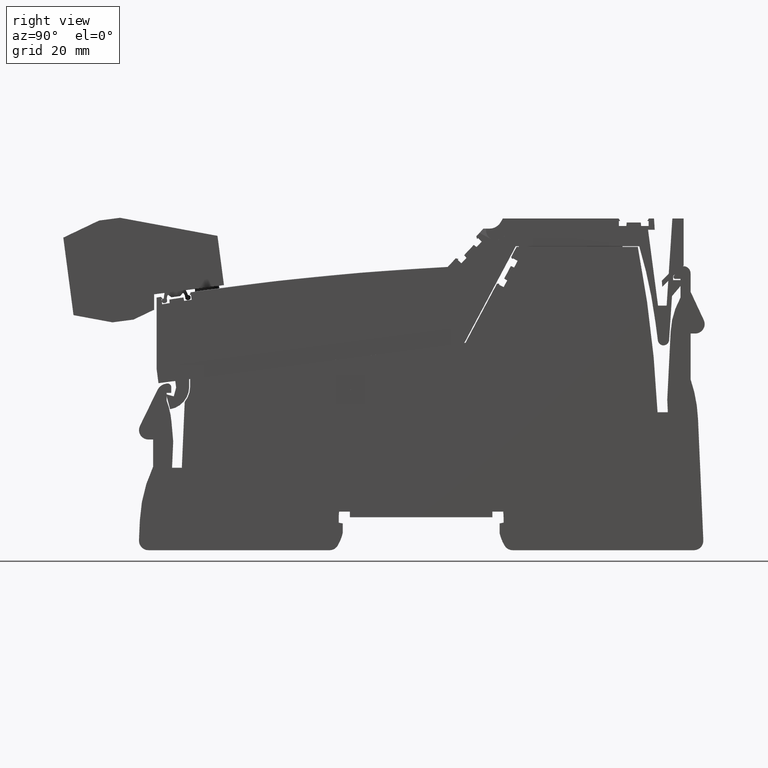
[diagram: clean part render]
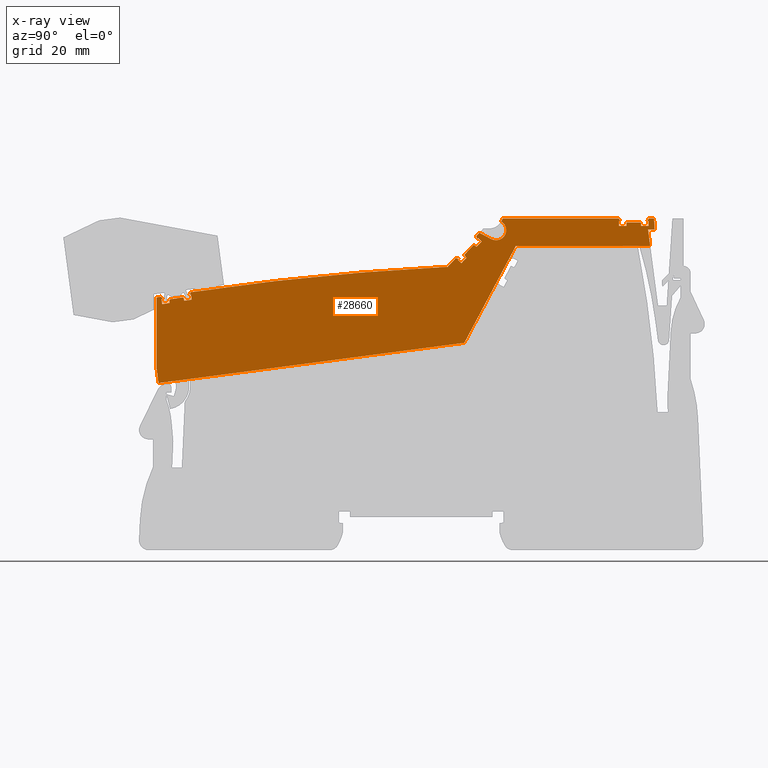
[diagram: x-ray — body ghosted, one internal face saturated and labeled with its STEP entity id]
A machine part, right view, then the same camera in x-ray: the body is ghosted and one INTERNAL B-rep face — a face not visible from any outside direction — is saturated and labeled: STEP entity #28660.
In plain terms, the highlighted planar face has unit normal (1, 0, 0).
Its self-contained STEP definition (entity closure, byte-faithful):
#24560=CARTESIAN_POINT('',(82.6815349965882,79.1094320933787,-35.425));
#24570=DIRECTION('',(0.,-0.,1.));
#24580=DIRECTION('',(0.99144486137381,0.130526192220052,0.));
#24590=AXIS2_PLACEMENT_3D('',#24560,#24570,#24580);
#24600=PLANE('',#24590);
#24610=CARTESIAN_POINT('',(7.105427357601E-15,123.952271663143,-35.425))
;
#24620=DIRECTION('',(0.887010833178214,-0.461748613235049,0.));
#24630=VECTOR('',#24620,1.);
#24640=LINE('',#24610,#24630);
#24650=CARTESIAN_POINT('',(81.7124060542132,81.4154854500132,-35.425));
#24660=VERTEX_POINT('',#24650);
#24670=CARTESIAN_POINT('',(84.2556033003072,80.0915807606426,-35.425));
#24680=VERTEX_POINT('',#24670);
#24690=EDGE_CURVE('',#24660,#24680,#24640,.T.);
#24700=ORIENTED_EDGE('',*,*,#24690,.F.);
#24710=CARTESIAN_POINT('',(85.2483628187626,81.9986540519759,-35.425));
#24720=DIRECTION('',(-8.85927774418128E-33,0.,1.));
#24730=DIRECTION('',(0.99144486137381,0.130526192220052,
8.7834853949519E-33));
#24740=AXIS2_PLACEMENT_3D('',#24710,#24720,#24730);
#24750=CIRCLE('',#24740,2.15000000000011);
#24760=CARTESIAN_POINT('',(86.323362818763,83.8606086701124,-35.425));
#24770=VERTEX_POINT('',#24760);
#24780=EDGE_CURVE('',#24680,#24770,#24750,.T.);
#24790=ORIENTED_EDGE('',*,*,#24780,.F.);
#24800=CARTESIAN_POINT('',(37.9064178286642,-2.8421709430404E-14,-35.425
));
#24810=DIRECTION('',(-0.500000000000028,-0.866025403784423,0.));
#24820=VECTOR('',#24810,1.);
#24830=LINE('',#24800,#24820);
#24840=CARTESIAN_POINT('',(86.6847904689085,84.4866197234245,-35.425));
#24850=VERTEX_POINT('',#24840);
#24860=EDGE_CURVE('',#24850,#24770,#24830,.T.);
#24870=ORIENTED_EDGE('',*,*,#24860,.T.);
#24880=CARTESIAN_POINT('',(7.105427357601E-15,84.4866197234245,-35.425))
;
#24890=DIRECTION('',(-1.,0.,0.));
#24900=VECTOR('',#24890,1.);
#24910=LINE('',#24880,#24900);
#24920=CARTESIAN_POINT('',(111.280097074187,84.4866197234245,-35.425));
#24930=VERTEX_POINT('',#24920);
#24940=EDGE_CURVE('',#24930,#24850,#24910,.T.);
#24950=ORIENTED_EDGE('',*,*,#24940,.T.);
#24960=CARTESIAN_POINT('',(117.476804588516,73.7536074689866,-35.425));
#24970=DIRECTION('',(0.500000000000819,-0.866025403783966,
3.34767537788399E-17));
#24980=VECTOR('',#24970,1.);
#24990=LINE('',#24960,#24980);
#25000=CARTESIAN_POINT('',(111.586092716858,83.9566197234263,-35.425));
#25010=VERTEX_POINT('',#25000);
#25020=EDGE_CURVE('',#24930,#25010,#24990,.T.);
#25030=ORIENTED_EDGE('',*,*,#25020,.F.);
#25040=CARTESIAN_POINT('',(70.5167661636283,83.9566197232153,-35.425));
#25050=DIRECTION('',(-1.,-5.1373627574236E-12,-1.14423563262215E-17));
#25060=VECTOR('',#25050,1.);
#25070=LINE('',#25040,#25060);
#25080=CARTESIAN_POINT('',(111.313785095723,83.9566197234249,-35.425));
#25090=VERTEX_POINT('',#25080);
#25100=EDGE_CURVE('',#25010,#25090,#25070,.T.);
#25110=ORIENTED_EDGE('',*,*,#25100,.F.);
#25120=CARTESIAN_POINT('',(111.313785095715,-2.8421709430404E-14,-35.425
));
#25130=DIRECTION('',(-9.34252675222069E-14,-1.,0.));
#25140=VECTOR('',#25130,1.);
#25150=LINE('',#25120,#25140);
#25160=CARTESIAN_POINT('',(111.313785095723,82.8866197234248,-35.425));
#25170=VERTEX_POINT('',#25160);
#25180=EDGE_CURVE('',#25090,#25170,#25150,.T.);
#25190=ORIENTED_EDGE('',*,*,#25180,.F.);
#25200=CARTESIAN_POINT('',(7.105427357601E-15,82.8866197234115,-35.425))
;
#25210=DIRECTION('',(1.,1.19154686117895E-13,0.));
#25220=VECTOR('',#25210,1.);
#25230=LINE('',#25200,#25220);
#25240=CARTESIAN_POINT('',(112.910668598078,82.886619723425,-35.425));
#25250=VERTEX_POINT('',#25240);
#25260=EDGE_CURVE('',#25170,#25250,#25230,.T.);
#25270=ORIENTED_EDGE('',*,*,#25260,.F.);
#25280=CARTESIAN_POINT('',(105.659029014286,-2.8421709430404E-14,-35.425
));
#25290=DIRECTION('',(0.087155742747754,0.996194698091737,0.));
#25300=VECTOR('',#25290,1.);
#25310=LINE('',#25280,#25300);
#25320=CARTESIAN_POINT('',(112.976285095723,83.6366197234249,-35.425));
#25330=VERTEX_POINT('',#25320);
#25340=EDGE_CURVE('',#25250,#25330,#25310,.T.);
#25350=ORIENTED_EDGE('',*,*,#25340,.F.);
#25360=CARTESIAN_POINT('',(70.5588949628286,83.6366197234257,-35.425));
#25370=DIRECTION('',(1.,-1.86795023893183E-14,1.14423563262215E-17));
#25380=VECTOR('',#25370,1.);
#25390=LINE('',#25360,#25380);
#25400=CARTESIAN_POINT('',(115.976285095723,83.6366197234249,-35.425));
#25410=VERTEX_POINT('',#25400);
#25420=EDGE_CURVE('',#25330,#25410,#25390,.T.);
#25430=ORIENTED_EDGE('',*,*,#25420,.F.);
#25440=CARTESIAN_POINT('',(123.293541177125,-2.8421709430404E-14,-35.425
));
#25450=DIRECTION('',(0.0871557427473462,-0.996194698091773,0.));
#25460=VECTOR('',#25450,1.);
#25470=LINE('',#25440,#25460);
#25480=CARTESIAN_POINT('',(116.041901593367,82.8866197234247,-35.425));
#25490=VERTEX_POINT('',#25480);
#25500=EDGE_CURVE('',#25410,#25490,#25470,.T.);
#25510=ORIENTED_EDGE('',*,*,#25500,.F.);
#25520=CARTESIAN_POINT('',(7.105427357601E-15,82.8866197234154,-35.425))
;
#25530=DIRECTION('',(1.,8.06021915877864E-14,0.));
#25540=VECTOR('',#25530,1.);
#25550=LINE('',#25520,#25540);
#25560=CARTESIAN_POINT('',(117.638785095723,82.8866197234249,-35.425));
#25570=VERTEX_POINT('',#25560);
#25580=EDGE_CURVE('',#25490,#25570,#25550,.T.);
#25590=ORIENTED_EDGE('',*,*,#25580,.F.);
#25600=CARTESIAN_POINT('',(117.638785095727,-2.8421709430404E-14,-35.425
));
#25610=DIRECTION('',(-5.49282841433296E-14,1.,0.));
#25620=VECTOR('',#25610,1.);
#25630=LINE('',#25600,#25620);
#25640=CARTESIAN_POINT('',(117.638785095723,83.9566197234248,-35.425));
#25650=VERTEX_POINT('',#25640);
#25660=EDGE_CURVE('',#25570,#25650,#25630,.T.);
#25670=ORIENTED_EDGE('',*,*,#25660,.F.);
#25680=CARTESIAN_POINT('',(70.5167661635693,83.9566197236635,-35.425));
#25690=DIRECTION('',(-1.,5.06689135093552E-12,-1.14423563262215E-17));
#25700=VECTOR('',#25690,1.);
#25710=LINE('',#25680,#25700);
#25720=CARTESIAN_POINT('',(117.366477474588,83.9566197234262,-35.425));
#25730=VERTEX_POINT('',#25720);
#25740=EDGE_CURVE('',#25650,#25730,#25710,.T.);
#25750=ORIENTED_EDGE('',*,*,#25740,.F.);
#25760=CARTESIAN_POINT('',(110.982106139763,72.8985641971313,-35.425));
#25770=DIRECTION('',(0.500000000000253,0.866025403784292,
-2.20343974524871E-17));
#25780=VECTOR('',#25770,1.);
#25790=LINE('',#25760,#25780);
#25800=CARTESIAN_POINT('',(117.672473117258,84.4866197234246,-35.425));
#25810=VERTEX_POINT('',#25800);
#25820=EDGE_CURVE('',#25730,#25810,#25790,.T.);
#25830=ORIENTED_EDGE('',*,*,#25820,.F.);
#25840=CARTESIAN_POINT('',(70.4469903398795,84.4866197234245,-35.425));
#25850=DIRECTION('',(-1.,-3.33066907387547E-15,-1.14423563262215E-17));
#25860=VECTOR('',#25850,1.);
#25870=LINE('',#25840,#25860);
#25880=CARTESIAN_POINT('',(118.776285095723,84.4866197234246,-35.425));
#25890=VERTEX_POINT('',#25880);
#25900=EDGE_CURVE('',#25890,#25810,#25870,.T.);
#25910=ORIENTED_EDGE('',*,*,#25900,.T.);
#25920=CARTESIAN_POINT('',(119.46262829087,74.0150461191697,-35.425));
#25930=DIRECTION('',(-0.0654031292301207,0.997858923238605,
-1.07067800097519E-18));
#25940=VECTOR('',#25930,1.);
#25950=LINE('',#25920,#25940);
#25960=CARTESIAN_POINT('',(118.933589406479,82.0866197234257,-35.425));
#25970=VERTEX_POINT('',#25960);
#25980=EDGE_CURVE('',#25970,#25890,#25950,.T.);
#25990=ORIENTED_EDGE('',*,*,#25980,.T.);
#26000=CARTESIAN_POINT('',(70.7629563340898,82.0866197234204,-35.425));
#26010=DIRECTION('',(-1.,-1.11688436277291E-13,-1.14423563262215E-17));
#26020=VECTOR('',#26010,1.);
#26030=LINE('',#26000,#26020);
#26040=CARTESIAN_POINT('',(117.512908656979,82.0866197234256,-35.425));
#26050=VERTEX_POINT('',#26040);
#26060=EDGE_CURVE('',#25970,#26050,#26030,.T.);
#26070=ORIENTED_EDGE('',*,*,#26060,.F.);
#26080=CARTESIAN_POINT('',(128.319817162075,-2.8421709430404E-14,-35.425
));
#26090=DIRECTION('',(0.130526192220052,-0.99144486137381,0.));
#26100=VECTOR('',#26090,1.);
#26110=LINE('',#26080,#26100);
#26120=CARTESIAN_POINT('',(117.973692398535,78.5866197234246,-35.425));
#26130=VERTEX_POINT('',#26120);
#26140=EDGE_CURVE('',#26050,#26130,#26110,.T.);
#26150=ORIENTED_EDGE('',*,*,#26140,.F.);
#26160=CARTESIAN_POINT('',(71.2237400756451,78.5866197234246,-35.425));
#26170=DIRECTION('',(1.,0.,1.14423563262215E-17));
#26180=VECTOR('',#26170,1.);
#26190=LINE('',#26160,#26180);
#26200=CARTESIAN_POINT('',(89.4233780495347,78.5866197234246,-35.425));
#26210=VERTEX_POINT('',#26200);
#26220=EDGE_CURVE('',#26210,#26130,#26190,.T.);
#26230=ORIENTED_EDGE('',*,*,#26220,.T.);
#26240=CARTESIAN_POINT('',(84.5486179871549,69.4185294618935,-35.425));
#26250=DIRECTION('',(0.469471562785891,0.882947592858927,
1.98252351633153E-18));
#26260=VECTOR('',#26250,1.);
#26270=LINE('',#26240,#26260);
#26280=CARTESIAN_POINT('',(78.5141517634814,58.0693491307922,-35.425));
#26290=VERTEX_POINT('',#26280);
#26300=EDGE_CURVE('',#26290,#26210,#26270,.T.);
#26310=ORIENTED_EDGE('',*,*,#26300,.T.);
#26320=CARTESIAN_POINT('',(74.0030776442306,57.4754549561902,-35.425));
#26330=DIRECTION('',(0.991444861373789,0.130526192220212,
2.03025052721141E-32));
#26340=VECTOR('',#26330,1.);
#26350=LINE('',#26320,#26340);
#26360=CARTESIAN_POINT('',(13.5745133434982,49.5198835403683,-35.425));
#26370=VERTEX_POINT('',#26360);
#26380=EDGE_CURVE('',#26370,#26290,#26350,.T.);
#26390=ORIENTED_EDGE('',*,*,#26380,.T.);
#26400=CARTESIAN_POINT('',(12.2086310606799,59.8947895075835,-35.425));
#26410=DIRECTION('',(0.130526192220052,-0.99144486137381,
-3.08148791101958E-32));
#26420=VECTOR('',#26410,1.);
#26430=LINE('',#26400,#26420);
#26440=CARTESIAN_POINT('',(13.1829347668366,52.4942181245001,-35.425));
#26450=VERTEX_POINT('',#26440);
#26460=EDGE_CURVE('',#26450,#26370,#26430,.T.);
#26470=ORIENTED_EDGE('',*,*,#26460,.T.);
#26480=CARTESIAN_POINT('',(13.1829347668366,60.0230590239077,-35.425));
#26490=DIRECTION('',(8.32667268468867E-17,-1.,-1.38777878078145E-17));
#26500=VECTOR('',#26490,1.);
#26510=LINE('',#26480,#26500);
#26520=CARTESIAN_POINT('',(13.1829347668366,67.701244428714,-35.425));
#26530=VERTEX_POINT('',#26520);
#26540=EDGE_CURVE('',#26530,#26450,#26510,.T.);
#26550=ORIENTED_EDGE('',*,*,#26540,.T.);
#26560=CARTESIAN_POINT('',(104.084452057128,-500.06799932646,-35.425));
#26570=DIRECTION('',(-8.85927774418128E-33,0.,1.));
#26580=DIRECTION('',(0.99144486137381,0.130526192220052,0.));
#26590=AXIS2_PLACEMENT_3D('',#26560,#26570,#26580);
#26600=CIRCLE('',#26590,575.);
#26610=CARTESIAN_POINT('',(14.0966316585303,67.8467761283693,-35.425));
#26620=VERTEX_POINT('',#26610);
#26630=EDGE_CURVE('',#26620,#26530,#26600,.T.);
#26640=ORIENTED_EDGE('',*,*,#26630,.T.);
#26650=CARTESIAN_POINT('',(19.676851164994,60.8779993368489,-35.425));
#26660=DIRECTION('',(0.625050010517978,-0.780584706711242,
2.1035385032723E-17));
#26670=VECTOR('',#26660,1.);
#26680=LINE('',#26650,#26670);
#26690=CARTESIAN_POINT('',(14.472765890979,67.3770463074278,-35.425));
#26700=VERTEX_POINT('',#26690);
#26710=EDGE_CURVE('',#26620,#26700,#26680,.T.);
#26720=ORIENTED_EDGE('',*,*,#26710,.F.);
#26730=CARTESIAN_POINT('',(71.551517232091,76.0969050392932,-35.425));
#26740=DIRECTION('',(-0.988531191076977,-0.151016834385886,
3.70508301110601E-19));
#26750=VECTOR('',#26740,1.);
#26760=LINE('',#26730,#26750);
#26770=CARTESIAN_POINT('',(14.2035813139184,67.3359232725049,-35.425));
#26780=VERTEX_POINT('',#26770);
#26790=EDGE_CURVE('',#26700,#26780,#26760,.T.);
#26800=ORIENTED_EDGE('',*,*,#26790,.F.);
#26810=CARTESIAN_POINT('',(24.4904170405679,-2.8421709430404E-14,-35.425
));
#26820=DIRECTION('',(0.151016834388983,-0.988531191076503,0.));
#26830=VECTOR('',#26820,1.);
#26840=LINE('',#26810,#26830);
#26850=CARTESIAN_POINT('',(14.3651693267146,66.2781948980529,-35.425));
#26860=VERTEX_POINT('',#26850);
#26870=EDGE_CURVE('',#26780,#26860,#26840,.T.);
#26880=ORIENTED_EDGE('',*,*,#26870,.F.);
#26890=CARTESIAN_POINT('',(7.105427357601E-15,64.0836436114932,-35.425))
;
#26900=DIRECTION('',(0.988531191076512,0.151016834388925,0.));
#26910=VECTOR('',#26900,1.);
#26920=LINE('',#26890,#26910);
#26930=CARTESIAN_POINT('',(15.9437384773084,66.5193511894665,-35.425));
#26940=VERTEX_POINT('',#26930);
#26950=EDGE_CURVE('',#26860,#26940,#26920,.T.);
#26960=ORIENTED_EDGE('',*,*,#26950,.F.);
#26970=CARTESIAN_POINT('',(20.2288651749482,-2.8421709430404E-14,-35.425
));
#26980=DIRECTION('',(-0.0642859995531953,0.997931515817316,0.));
#26990=VECTOR('',#26980,1.);
#27000=LINE('',#26970,#26990);
#27010=CARTESIAN_POINT('',(15.8953398060877,67.2706587785318,-35.425));
#27020=VERTEX_POINT('',#27010);
#27030=EDGE_CURVE('',#26940,#27020,#27000,.T.);
#27040=ORIENTED_EDGE('',*,*,#27030,.F.);
#27050=CARTESIAN_POINT('',(71.5932945613604,75.7795747186763,-35.425));
#27060=DIRECTION('',(0.988531191076507,0.151016834388962,
-3.70508301168148E-19));
#27070=VECTOR('',#27060,1.);
#27080=LINE('',#27050,#27070);
#27090=CARTESIAN_POINT('',(18.8609333793172,67.7237092816986,-35.425));
#27100=VERTEX_POINT('',#27090);
#27110=EDGE_CURVE('',#27020,#27100,#27080,.T.);
#27120=ORIENTED_EDGE('',*,*,#27110,.F.);
#27130=CARTESIAN_POINT('',(35.352486206355,-2.8421709430404E-14,-35.425)
);
#27140=DIRECTION('',(0.236598339928087,-0.971607547080236,0.));
#27150=VECTOR('',#27140,1.);
#27160=LINE('',#27130,#27150);
#27170=CARTESIAN_POINT('',(19.0390599596794,66.9922200841493,-35.425));
#27180=VERTEX_POINT('',#27170);
#27190=EDGE_CURVE('',#27100,#27180,#27160,.T.);
#27200=ORIENTED_EDGE('',*,*,#27190,.F.);
#27210=CARTESIAN_POINT('',(7.105427357601E-15,64.0836436114918,-35.425))
;
#27220=DIRECTION('',(0.9885311910765,0.151016834389004,0.));
#27230=VECTOR('',#27220,1.);
#27240=LINE('',#27210,#27230);
#27250=CARTESIAN_POINT('',(20.6176291102735,67.2333763755631,-35.425));
#27260=VERTEX_POINT('',#27250);
#27270=EDGE_CURVE('',#27180,#27260,#27240,.T.);
#27280=ORIENTED_EDGE('',*,*,#27270,.F.);
#27290=CARTESIAN_POINT('',(30.8887988590628,-2.8421709430404E-14,-35.425
));
#27300=DIRECTION('',(-0.15101683438897,0.988531191076505,0.));
#27310=VECTOR('',#27300,1.);
#27320=LINE('',#27290,#27310);
#27330=CARTESIAN_POINT('',(20.4560410974773,68.2911047500148,-35.425));
#27340=VERTEX_POINT('',#27330);
#27350=EDGE_CURVE('',#27260,#27340,#27320,.T.);
#27360=ORIENTED_EDGE('',*,*,#27350,.F.);
#27370=CARTESIAN_POINT('',(71.5515172321112,76.0969050391398,-35.425));
#27380=DIRECTION('',(-0.988531191077486,-0.151016834382553,
3.70508301048238E-19));
#27390=VECTOR('',#27380,1.);
#27400=LINE('',#27370,#27390);
#27410=CARTESIAN_POINT('',(20.186856520418,68.2499817150928,-35.425));
#27420=VERTEX_POINT('',#27410);
#27430=EDGE_CURVE('',#27340,#27420,#27400,.T.);
#27440=ORIENTED_EDGE('',*,*,#27430,.F.);
#27450=CARTESIAN_POINT('',(17.182413559422,60.5496003959994,-35.425));
#27460=DIRECTION('',(0.363481180558057,0.931601541100122,
-1.0997552478088E-17));
#27470=VECTOR('',#27460,1.);
#27480=LINE('',#27450,#27470);
#27490=CARTESIAN_POINT('',(20.4055873620426,68.8105884260945,-35.425));
#27500=VERTEX_POINT('',#27490);
#27510=EDGE_CURVE('',#27420,#27500,#27480,.T.);
#27520=ORIENTED_EDGE('',*,*,#27510,.F.);
#27530=CARTESIAN_POINT('',(104.084452057128,-500.06799932646,-35.425));
#27540=DIRECTION('',(-8.85927774418128E-33,0.,1.));
#27550=DIRECTION('',(0.99144486137381,0.130526192220052,0.));
#27560=AXIS2_PLACEMENT_3D('',#27530,#27540,#27550);
#27570=CIRCLE('',#27560,575.);
#27580=CARTESIAN_POINT('',(74.9791020504755,74.1949009213182,-35.425));
#27590=VERTEX_POINT('',#27580);
#27600=EDGE_CURVE('',#27590,#27500,#27570,.T.);
#27610=ORIENTED_EDGE('',*,*,#27600,.T.);
#27620=CARTESIAN_POINT('',(72.1949828292245,71.2092985834693,-35.425));
#27630=DIRECTION('',(-0.681998360062363,-0.731353701619297,
-2.53969612628868E-19));
#27640=VECTOR('',#27630,1.);
#27650=LINE('',#27620,#27640);
#27660=CARTESIAN_POINT('',(76.688235497364,76.0277221510188,-35.425));
#27670=VERTEX_POINT('',#27660);
#27680=EDGE_CURVE('',#27670,#27590,#27650,.T.);
#27690=ORIENTED_EDGE('',*,*,#27680,.T.);
#27700=CARTESIAN_POINT('',(71.3998893619735,77.248633057342,-35.425));
#27710=DIRECTION('',(0.974370064785244,-0.224951054343824,
3.6059170670998E-17));
#27720=VECTOR('',#27710,1.);
#27730=LINE('',#27700,#27720);
#27740=CARTESIAN_POINT('',(77.2845414857078,75.8900540661325,-35.425));
#27750=VERTEX_POINT('',#27740);
#27760=EDGE_CURVE('',#27670,#27750,#27730,.T.);
#27770=ORIENTED_EDGE('',*,*,#27760,.F.);
#27780=CARTESIAN_POINT('',(72.2846363775469,70.5283122750789,-35.425));
#27790=DIRECTION('',(-0.681998360064581,-0.731353701617229,
-2.53969612900505E-19));
#27800=VECTOR('',#27790,1.);
#27810=LINE('',#27780,#27800);
#27820=CARTESIAN_POINT('',(77.0988281346601,75.6909008794362,-35.425));
#27830=VERTEX_POINT('',#27820);
#27840=EDGE_CURVE('',#27750,#27830,#27810,.T.);
#27850=ORIENTED_EDGE('',*,*,#27840,.F.);
#27860=CARTESIAN_POINT('',(7.105427357601E-15,147.586721238526,-35.425))
;
#27870=DIRECTION('',(0.731353701619242,-0.681998360062422,0.));
#27880=VECTOR('',#27870,1.);
#27890=LINE('',#27860,#27880);
#27900=CARTESIAN_POINT('',(77.8813765953927,74.9611626341694,-35.425));
#27910=VERTEX_POINT('',#27900);
#27920=EDGE_CURVE('',#27830,#27910,#27890,.T.);
#27930=ORIENTED_EDGE('',*,*,#27920,.F.);
#27940=CARTESIAN_POINT('',(7.97896156459621,-2.8421709430404E-14,-35.425
));
#27950=DIRECTION('',(0.681998360062575,0.731353701619099,0.));
#27960=VECTOR('',#27950,1.);
#27970=LINE('',#27940,#27960);
#27980=CARTESIAN_POINT('',(78.9704485252099,76.1290492946714,-35.425));
#27990=VERTEX_POINT('',#27980);
#28000=EDGE_CURVE('',#27910,#27990,#27970,.T.);
#28010=ORIENTED_EDGE('',*,*,#28000,.F.);
#28020=CARTESIAN_POINT('',(147.517352398626,-2.8421709430404E-14,-35.425
));
#28030=DIRECTION('',(-0.669130606358558,0.743144825477665,0.));
#28040=VECTOR('',#28030,1.);
#28050=LINE('',#28020,#28040);
#28060=CARTESIAN_POINT('',(78.4666835927825,76.6885369331583,-35.425));
#28070=VERTEX_POINT('',#28060);
#28080=EDGE_CURVE('',#27990,#28070,#28050,.T.);
#28090=ORIENTED_EDGE('',*,*,#28080,.F.);
#28100=CARTESIAN_POINT('',(72.338766821823,70.1171507303451,-35.425));
#28110=DIRECTION('',(0.681998360062455,0.731353701619211,
2.53969612640089E-19));
#28120=VECTOR('',#28110,1.);
#28130=LINE('',#28100,#28120);
#28140=CARTESIAN_POINT('',(80.5126786729696,78.8825980380156,-35.425));
#28150=VERTEX_POINT('',#28140);
#28160=EDGE_CURVE('',#28070,#28150,#28130,.T.);
#28170=ORIENTED_EDGE('',*,*,#28160,.F.);
#28180=CARTESIAN_POINT('',(7.105427357601E-15,141.785996636754,-35.425))
;
#28190=DIRECTION('',(0.788010753606755,-0.615661475325616,0.));
#28200=VECTOR('',#28190,1.);
#28210=LINE('',#28180,#28200);
#28220=CARTESIAN_POINT('',(81.1059442929708,78.4190881364081,-35.425));
#28230=VERTEX_POINT('',#28220);
#28240=EDGE_CURVE('',#28150,#28230,#28210,.T.);
#28250=ORIENTED_EDGE('',*,*,#28240,.F.);
#28260=CARTESIAN_POINT('',(7.9789615646208,-2.8421709430404E-14,-35.425)
);
#28270=DIRECTION('',(0.681998360062451,0.731353701619215,0.));
#28280=VECTOR('',#28270,1.);
#28290=LINE('',#28260,#28280);
#28300=CARTESIAN_POINT('',(82.195016222788,79.5869747969106,-35.425));
#28310=VERTEX_POINT('',#28300);
#28320=EDGE_CURVE('',#28230,#28310,#28290,.T.);
#28330=ORIENTED_EDGE('',*,*,#28320,.F.);
#28340=CARTESIAN_POINT('',(7.105427357601E-15,156.235067429974,-35.425))
;
#28350=DIRECTION('',(-0.731353701619242,0.681998360062422,0.));
#28360=VECTOR('',#28350,1.);
#28370=LINE('',#28340,#28360);
#28380=CARTESIAN_POINT('',(81.4124677620555,80.3167130421773,-35.425));
#28390=VERTEX_POINT('',#28380);
#28400=EDGE_CURVE('',#28310,#28390,#28370,.T.);
#28410=ORIENTED_EDGE('',*,*,#28400,.F.);
#28420=CARTESIAN_POINT('',(72.2846363775451,70.5283122750928,-35.425));
#28430=DIRECTION('',(-0.681998360064199,-0.731353701617584,
-2.53969612853764E-19));
#28440=VECTOR('',#28430,1.);
#28450=LINE('',#28420,#28440);
#28460=CARTESIAN_POINT('',(81.2267544110084,80.1175598554815,-35.425));
#28470=VERTEX_POINT('',#28460);
#28480=EDGE_CURVE('',#28390,#28470,#28450,.T.);
#28490=ORIENTED_EDGE('',*,*,#28480,.F.);
#28500=CARTESIAN_POINT('',(84.4997434735127,69.4120950101041,-35.425));
#28510=DIRECTION('',(-0.29237170472236,0.956304755963151,
5.82816236513809E-18));
#28520=VECTOR('',#28510,1.);
#28530=LINE('',#28500,#28520);
#28540=CARTESIAN_POINT('',(81.0478254756385,80.7028100322593,-35.425));
#28550=VERTEX_POINT('',#28540);
#28560=EDGE_CURVE('',#28470,#28550,#28530,.T.);
#28570=ORIENTED_EDGE('',*,*,#28560,.F.);
#28580=CARTESIAN_POINT('',(5.79123762688281,-2.8421709430404E-14,-35.425
));
#28590=DIRECTION('',(0.681998360062363,0.731353701619297,0.));
#28600=VECTOR('',#28590,1.);
#28610=LINE('',#28580,#28600);
#28620=EDGE_CURVE('',#28550,#24660,#28610,.T.);
#28630=ORIENTED_EDGE('',*,*,#28620,.F.);
#28640=EDGE_LOOP('',(#28630,#28570,#28490,#28410,#28330,#28250,#28170,
#28090,#28010,#27930,#27850,#27770,#27690,#27610,#27520,#27440,#27360,
#27280,#27200,#27120,#27040,#26960,#26880,#26800,#26720,#26640,#26550,
#26470,#26390,#26310,#26230,#26150,#26070,#25990,#25910,#25830,#25750,
#25670,#25590,#25510,#25430,#25350,#25270,#25190,#25110,#25030,#24950,
#24870,#24790,#24700));
#28650=FACE_OUTER_BOUND('',#28640,.T.);
#28660=ADVANCED_FACE('',(#28650),#24600,.T.);